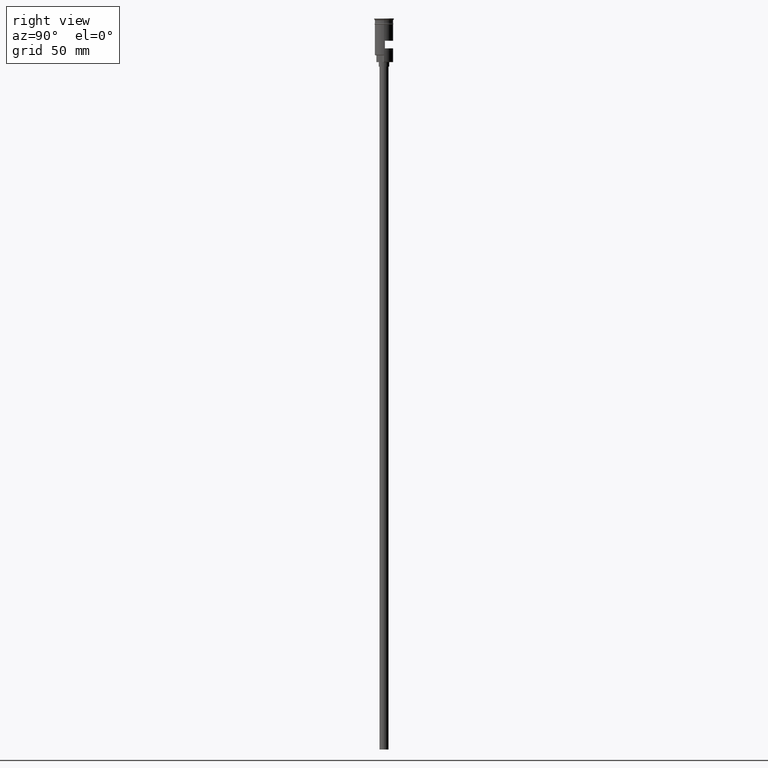
[diagram: clean part render]
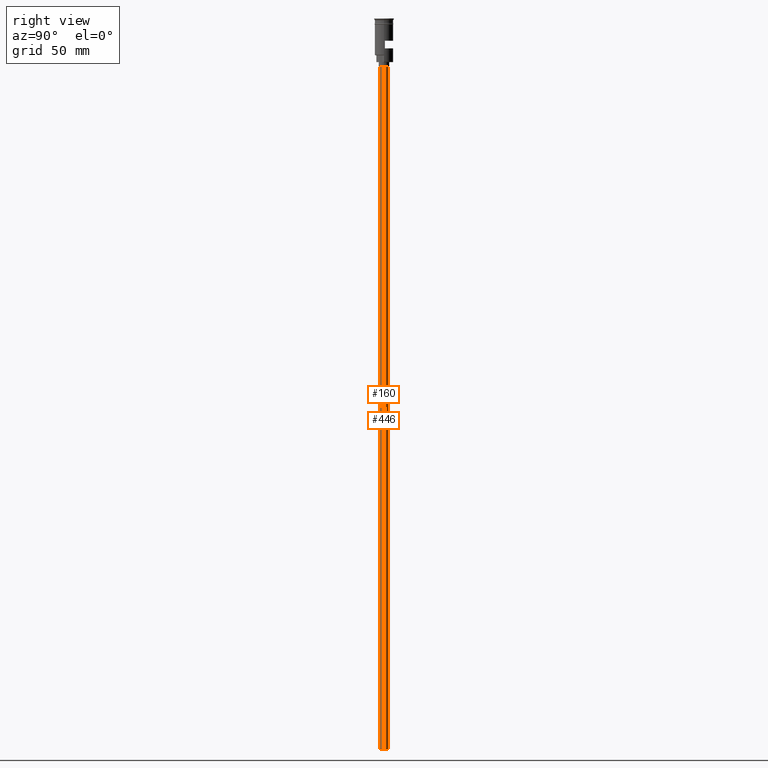
[diagram: same view with one multi-face feature highlighted, each face labeled with its STEP entity id]
A machine part, right view. The highlighted faces form ONE feature: a constant-radius fillet chain: 2 tangent blend faces with common blend radius 3 mm. The faces share edges in the B-rep.
Their STEP definitions:
[1] entity #446 (Cylinder):
#4 = EDGE_CURVE ( 'NONE', #940, #798, #1024, .T. ) ;
#28 = DIRECTION ( 'NONE',  ( -0.000000000000000000, -0.000000000000000000, 1.000000000000000000 ) ) ;
#34 = DIRECTION ( 'NONE',  ( -1.000000000000000000, 0.000000000000000000, 0.000000000000000000 ) ) ;
#196 = CARTESIAN_POINT ( 'NONE',  ( -3.000000000000000444, 3.673940397442060361E-16, -31.50000000000000000 ) ) ;
#233 = LINE ( 'NONE', #1108, #1578 ) ;
#272 = ORIENTED_EDGE ( 'NONE', *, *, #509, .F. ) ;
#282 = DIRECTION ( 'NONE',  ( 1.000000000000000000, 0.000000000000000000, 0.000000000000000000 ) ) ;
#329 = ORIENTED_EDGE ( 'NONE', *, *, #697, .T. ) ;
#332 = VECTOR ( 'NONE', #499, 1000.000000000000000 ) ;
#344 = EDGE_CURVE ( 'NONE', #1161, #1309, #1521, .T. ) ;
#395 = CARTESIAN_POINT ( 'NONE',  ( -3.000000000000000444, 3.673940397442060361E-16, -478.5000000000000568 ) ) ;
#446 = ADVANCED_FACE ( 'NONE', ( #715 ), #478, .T. ) ;
#452 = ORIENTED_EDGE ( 'NONE', *, *, #4, .T. ) ;
#478 = CYLINDRICAL_SURFACE ( 'NONE', #738, 3.000000000000000444 ) ;
#495 = CARTESIAN_POINT ( 'NONE',  ( -3.000000000000000444, 3.673940397442060361E-16, -478.5000000000000568 ) ) ;
#499 = DIRECTION ( 'NONE',  ( -0.000000000000000000, -0.000000000000000000, 1.000000000000000000 ) ) ;
#509 = EDGE_CURVE ( 'NONE', #1309, #798, #233, .T. ) ;
#618 = CARTESIAN_POINT ( 'NONE',  ( 3.000000000000000444, 0.000000000000000000, -478.5000000000000568 ) ) ;
#689 = AXIS2_PLACEMENT_3D ( 'NONE', #886, #1148, #34 ) ;
#697 = EDGE_CURVE ( 'NONE', #1161, #940, #1605, .T. ) ;
#699 = CARTESIAN_POINT ( 'NONE',  ( 0.000000000000000000, 0.000000000000000000, -478.5000000000000568 ) ) ;
#715 = FACE_OUTER_BOUND ( 'NONE', #964, .T. ) ;
#738 = AXIS2_PLACEMENT_3D ( 'NONE', #890, #846, #282 ) ;
#798 = VERTEX_POINT ( 'NONE', #1513 ) ;
#846 = DIRECTION ( 'NONE',  ( -0.000000000000000000, -0.000000000000000000, 1.000000000000000000 ) ) ;
#886 = CARTESIAN_POINT ( 'NONE',  ( 0.000000000000000000, 0.000000000000000000, -31.50000000000000000 ) ) ;
#890 = CARTESIAN_POINT ( 'NONE',  ( 0.000000000000000000, 0.000000000000000000, -478.5000000000000568 ) ) ;
#940 = VERTEX_POINT ( 'NONE', #196 ) ;
#964 = EDGE_LOOP ( 'NONE', ( #1368, #329, #452, #272 ) ) ;
#1024 = CIRCLE ( 'NONE', #689, 3.000000000000000444 ) ;
#1073 = DIRECTION ( 'NONE',  ( -1.000000000000000000, 0.000000000000000000, 0.000000000000000000 ) ) ;
#1108 = CARTESIAN_POINT ( 'NONE',  ( 3.000000000000000444, 0.000000000000000000, -478.5000000000000568 ) ) ;
#1148 = DIRECTION ( 'NONE',  ( 0.000000000000000000, 0.000000000000000000, -1.000000000000000000 ) ) ;
#1161 = VERTEX_POINT ( 'NONE', #495 ) ;
#1197 = DIRECTION ( 'NONE',  ( 0.000000000000000000, 0.000000000000000000, -1.000000000000000000 ) ) ;
#1309 = VERTEX_POINT ( 'NONE', #618 ) ;
#1368 = ORIENTED_EDGE ( 'NONE', *, *, #344, .F. ) ;
#1392 = AXIS2_PLACEMENT_3D ( 'NONE', #699, #1197, #1073 ) ;
#1513 = CARTESIAN_POINT ( 'NONE',  ( 3.000000000000000444, 0.000000000000000000, -31.50000000000000000 ) ) ;
#1521 = CIRCLE ( 'NONE', #1392, 3.000000000000000444 ) ;
#1578 = VECTOR ( 'NONE', #28, 1000.000000000000000 ) ;
#1605 = LINE ( 'NONE', #395, #332 ) ;
[2] entity #160 (Cylinder):
#28 = DIRECTION ( 'NONE',  ( -0.000000000000000000, -0.000000000000000000, 1.000000000000000000 ) ) ;
#31 = DIRECTION ( 'NONE',  ( 1.000000000000000000, 0.000000000000000000, 0.000000000000000000 ) ) ;
#40 = FACE_OUTER_BOUND ( 'NONE', #663, .T. ) ;
#160 = ADVANCED_FACE ( 'NONE', ( #40 ), #533, .T. ) ;
#196 = CARTESIAN_POINT ( 'NONE',  ( -3.000000000000000444, 3.673940397442060361E-16, -31.50000000000000000 ) ) ;
#233 = LINE ( 'NONE', #1108, #1578 ) ;
#267 = ORIENTED_EDGE ( 'NONE', *, *, #1537, .F. ) ;
#280 = AXIS2_PLACEMENT_3D ( 'NONE', #1534, #755, #31 ) ;
#332 = VECTOR ( 'NONE', #499, 1000.000000000000000 ) ;
#334 = DIRECTION ( 'NONE',  ( -1.000000000000000000, 0.000000000000000000, 0.000000000000000000 ) ) ;
#395 = CARTESIAN_POINT ( 'NONE',  ( -3.000000000000000444, 3.673940397442060361E-16, -478.5000000000000568 ) ) ;
#495 = CARTESIAN_POINT ( 'NONE',  ( -3.000000000000000444, 3.673940397442060361E-16, -478.5000000000000568 ) ) ;
#499 = DIRECTION ( 'NONE',  ( -0.000000000000000000, -0.000000000000000000, 1.000000000000000000 ) ) ;
#509 = EDGE_CURVE ( 'NONE', #1309, #798, #233, .T. ) ;
#533 = CYLINDRICAL_SURFACE ( 'NONE', #280, 3.000000000000000444 ) ;
#618 = CARTESIAN_POINT ( 'NONE',  ( 3.000000000000000444, 0.000000000000000000, -478.5000000000000568 ) ) ;
#663 = EDGE_LOOP ( 'NONE', ( #1215, #267, #934, #793 ) ) ;
#684 = CIRCLE ( 'NONE', #1418, 3.000000000000000444 ) ;
#697 = EDGE_CURVE ( 'NONE', #1161, #940, #1605, .T. ) ;
#755 = DIRECTION ( 'NONE',  ( -0.000000000000000000, -0.000000000000000000, 1.000000000000000000 ) ) ;
#793 = ORIENTED_EDGE ( 'NONE', *, *, #1043, .T. ) ;
#798 = VERTEX_POINT ( 'NONE', #1513 ) ;
#888 = CARTESIAN_POINT ( 'NONE',  ( 0.000000000000000000, 0.000000000000000000, -478.5000000000000568 ) ) ;
#901 = DIRECTION ( 'NONE',  ( -1.000000000000000000, 0.000000000000000000, 0.000000000000000000 ) ) ;
#934 = ORIENTED_EDGE ( 'NONE', *, *, #509, .T. ) ;
#940 = VERTEX_POINT ( 'NONE', #196 ) ;
#989 = AXIS2_PLACEMENT_3D ( 'NONE', #888, #1517, #901 ) ;
#1043 = EDGE_CURVE ( 'NONE', #798, #940, #684, .T. ) ;
#1108 = CARTESIAN_POINT ( 'NONE',  ( 3.000000000000000444, 0.000000000000000000, -478.5000000000000568 ) ) ;
#1161 = VERTEX_POINT ( 'NONE', #495 ) ;
#1215 = ORIENTED_EDGE ( 'NONE', *, *, #697, .F. ) ;
#1309 = VERTEX_POINT ( 'NONE', #618 ) ;
#1330 = CIRCLE ( 'NONE', #989, 3.000000000000000444 ) ;
#1418 = AXIS2_PLACEMENT_3D ( 'NONE', #1574, #1444, #334 ) ;
#1444 = DIRECTION ( 'NONE',  ( 0.000000000000000000, 0.000000000000000000, -1.000000000000000000 ) ) ;
#1513 = CARTESIAN_POINT ( 'NONE',  ( 3.000000000000000444, 0.000000000000000000, -31.50000000000000000 ) ) ;
#1517 = DIRECTION ( 'NONE',  ( 0.000000000000000000, 0.000000000000000000, -1.000000000000000000 ) ) ;
#1534 = CARTESIAN_POINT ( 'NONE',  ( 0.000000000000000000, 0.000000000000000000, -478.5000000000000568 ) ) ;
#1537 = EDGE_CURVE ( 'NONE', #1309, #1161, #1330, .T. ) ;
#1574 = CARTESIAN_POINT ( 'NONE',  ( 0.000000000000000000, 0.000000000000000000, -31.50000000000000000 ) ) ;
#1578 = VECTOR ( 'NONE', #28, 1000.000000000000000 ) ;
#1605 = LINE ( 'NONE', #395, #332 ) ;